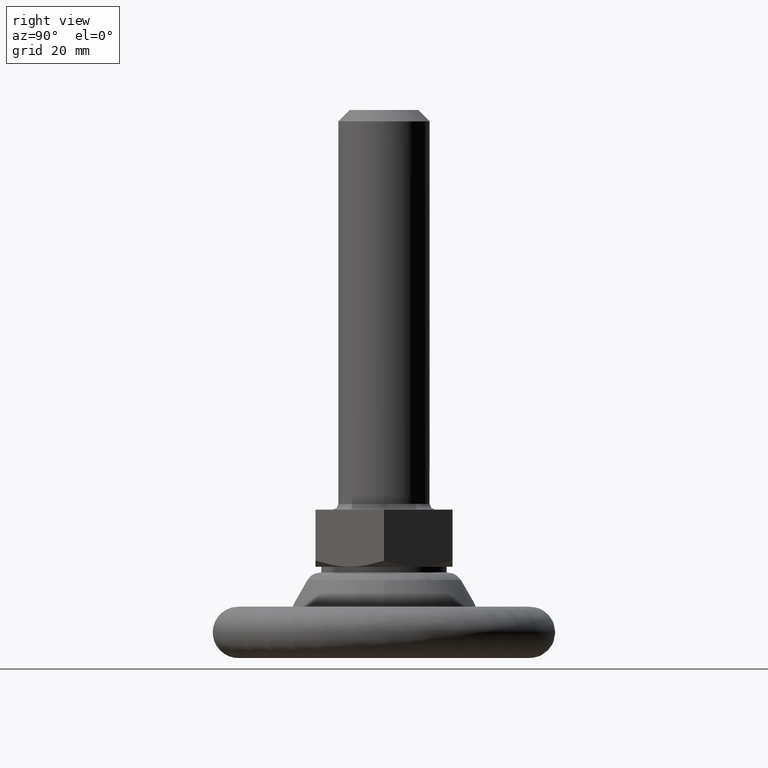
[diagram: clean part render]
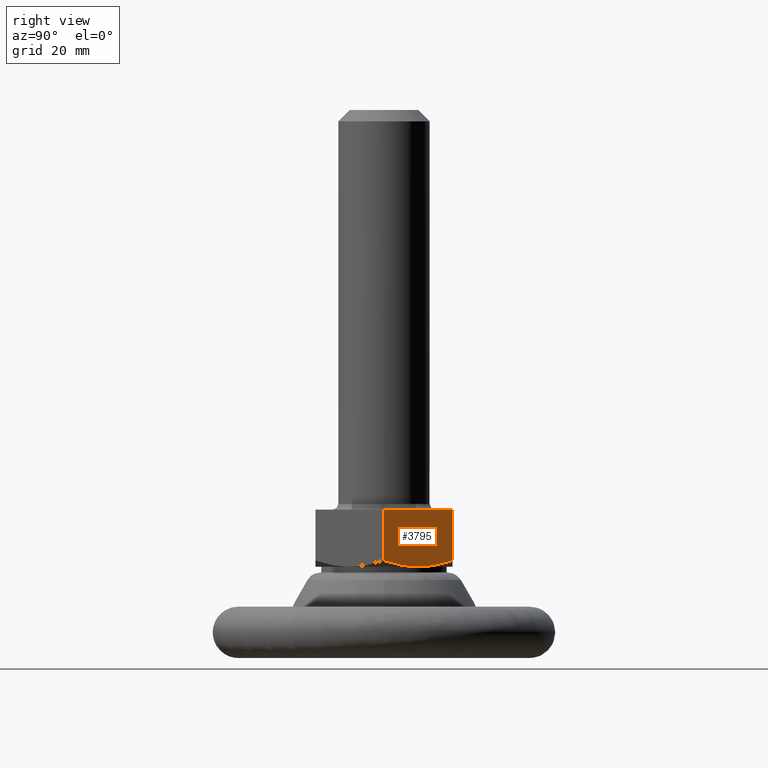
[diagram: same view with one face highlighted and labeled with its STEP entity id]
A machine part, right view. The second image highlights one B-rep face of the part: STEP entity #3795.
In plain terms, the highlighted face is a freeform B-spline surface patch.
Its self-contained STEP definition (entity closure, byte-faithful):
#3355=CARTESIAN_POINT('',(6.928203000000000,12.0,17.071796613999251));
#3356=VERTEX_POINT('',#3355);
#3357=CARTESIAN_POINT('',(10.392304672706601,6.000000566888719,16.0));
#3358=VERTEX_POINT('',#3357);
#3359=CARTESIAN_POINT('',(6.928203000000000,12.0,17.071796613999251));
#3360=CARTESIAN_POINT('',(7.493825180307834,11.020313754662240,16.745234542219471));
#3361=CARTESIAN_POINT('',(8.063571149114740,10.033484898917971,16.476088277347490));
#3362=CARTESIAN_POINT('',(8.927101799790014,8.537806104225533,16.196447091368931));
#3363=CARTESIAN_POINT('',(9.216434194730905,8.036667751588883,16.123962655867150));
#3364=CARTESIAN_POINT('',(9.798468553823920,7.028554781890502,16.025908541825210));
#3365=CARTESIAN_POINT('',(10.091173429636360,6.521575121685749,16.000379402543039));
#3366=CARTESIAN_POINT('',(10.387891353425211,6.007644659264860,16.000001393807921));
#3367=CARTESIAN_POINT('',(10.390097931728789,6.003822753956794,15.999999998966400));
#3368=CARTESIAN_POINT('',(10.392304672706601,6.000000566888719,16.0));
#3369=B_SPLINE_CURVE_WITH_KNOTS('',3,(#3359,#3360,#3361,#3362,#3363,#3364,#3365,#3366,#3367,#3368),.UNSPECIFIED.,.F.,.U.,(4,2,2,2,4),(0.0,0.250000000000000,0.375000000000000,0.500000000000000,0.500936470497539),.UNSPECIFIED.);
#3370=EDGE_CURVE('',#3356,#3358,#3369,.T.);
#3663=CARTESIAN_POINT('',(13.856407000000001,1.443384E-015,17.071796991925051));
#3664=VERTEX_POINT('',#3663);
#3691=CARTESIAN_POINT('',(10.392304672706601,6.000000566888719,16.0));
#3692=CARTESIAN_POINT('',(10.537375735778321,5.748730142856654,16.000001392490031));
#3693=CARTESIAN_POINT('',(10.683150332083770,5.496241163654354,16.006121147230900));
#3694=CARTESIAN_POINT('',(10.975604263124470,4.989696152495846,16.030594164562778));
#3695=CARTESIAN_POINT('',(11.122423114291131,4.735398471018800,16.049103590569398));
#3696=CARTESIAN_POINT('',(11.561410483081749,3.975050128867313,16.122371078983161));
#3697=CARTESIAN_POINT('',(11.852106381136410,3.471550119823720,16.194909824923659));
#3698=CARTESIAN_POINT('',(12.719018634456100,1.970014218190852,16.475015301457312));
#3699=CARTESIAN_POINT('',(13.290079714980070,0.980907522388081,16.744827781469020));
#3700=CARTESIAN_POINT('',(13.856407000000001,1.443384E-015,17.071796991925051));
#3701=B_SPLINE_CURVE_WITH_KNOTS('',3,(#3691,#3692,#3693,#3694,#3695,#3696,#3697,#3698,#3699,#3700),.UNSPECIFIED.,.F.,.U.,(4,2,2,2,4),(0.500936470526085,0.562500000000000,0.625000000000000,0.750000000000000,1.0),.UNSPECIFIED.);
#3702=EDGE_CURVE('',#3358,#3664,#3701,.T.);
#3712=CARTESIAN_POINT('',(6.928203000000000,12.0,26.0));
#3713=VERTEX_POINT('',#3712);
#3742=CARTESIAN_POINT('',(13.856407000000001,0.0,26.0));
#3743=VERTEX_POINT('',#3742);
#3749=CARTESIAN_POINT('',(13.856407000000001,0.0,26.0));
#3750=CARTESIAN_POINT('',(6.928203000000000,12.0,26.0));
#3751=QUASI_UNIFORM_CURVE('',1,(#3749,#3750),.UNSPECIFIED.,.F.,.U.);
#3752=EDGE_CURVE('',#3743,#3713,#3751,.T.);
#3775=CARTESIAN_POINT('',(6.582139223628195,12.599399976741671,15.500500019381940));
#3776=CARTESIAN_POINT('',(14.202470962200710,-0.599400298606755,15.500500019381940));
#3777=CARTESIAN_POINT('',(6.582139223628195,12.599399976741671,26.499500248838970));
#3778=CARTESIAN_POINT('',(14.202470962200710,-0.599400298606755,26.499500248838970));
#3779=B_SPLINE_SURFACE_WITH_KNOTS('',1,1,((#3775,#3777),(#3776,#3778)),.UNSPECIFIED.,.F.,.F.,.U.,(2,2),(2,2),(0.0,15.240662207215051),(0.0,10.999000229457030),.UNSPECIFIED.);
#3780=ORIENTED_EDGE('',*,*,#3370,.F.);
#3781=CARTESIAN_POINT('',(6.928203000000000,12.0,26.0));
#3782=CARTESIAN_POINT('',(6.928203000000000,12.0,17.071796613999251));
#3783=QUASI_UNIFORM_CURVE('',1,(#3781,#3782),.UNSPECIFIED.,.F.,.U.);
#3784=EDGE_CURVE('',#3713,#3356,#3783,.T.);
#3785=ORIENTED_EDGE('',*,*,#3784,.F.);
#3786=ORIENTED_EDGE('',*,*,#3752,.F.);
#3787=CARTESIAN_POINT('',(13.856407000000001,0.0,26.0));
#3788=CARTESIAN_POINT('',(13.856407000000001,1.443384E-015,17.071796991925051));
#3789=QUASI_UNIFORM_CURVE('',1,(#3787,#3788),.UNSPECIFIED.,.F.,.U.);
#3790=EDGE_CURVE('',#3743,#3664,#3789,.T.);
#3791=ORIENTED_EDGE('',*,*,#3790,.T.);
#3792=ORIENTED_EDGE('',*,*,#3702,.F.);
#3793=EDGE_LOOP('',(#3780,#3785,#3786,#3791,#3792));
#3794=FACE_OUTER_BOUND('',#3793,.T.);
#3795=ADVANCED_FACE('',(#3794),#3779,.F.);